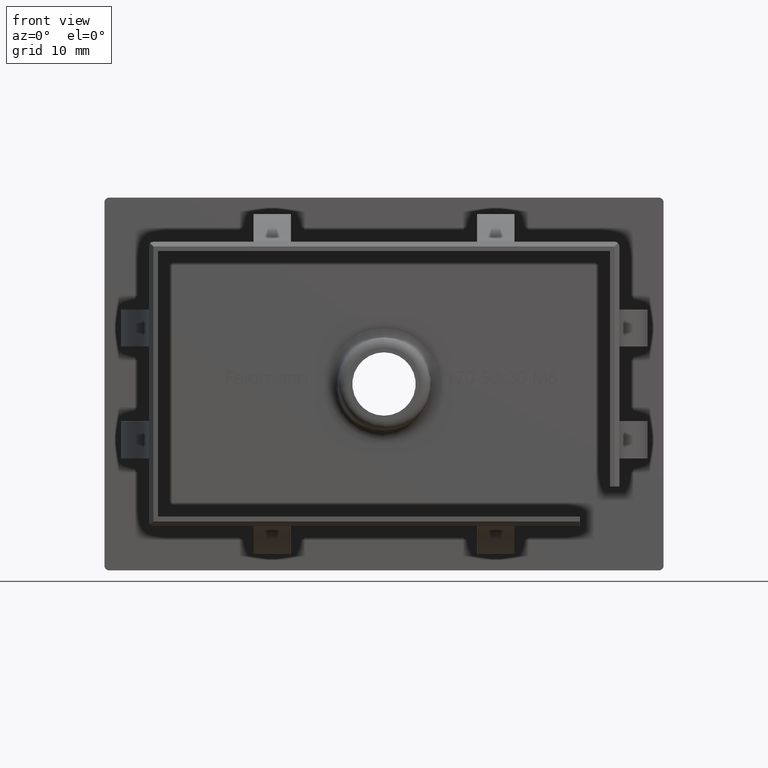
[diagram: clean part render]
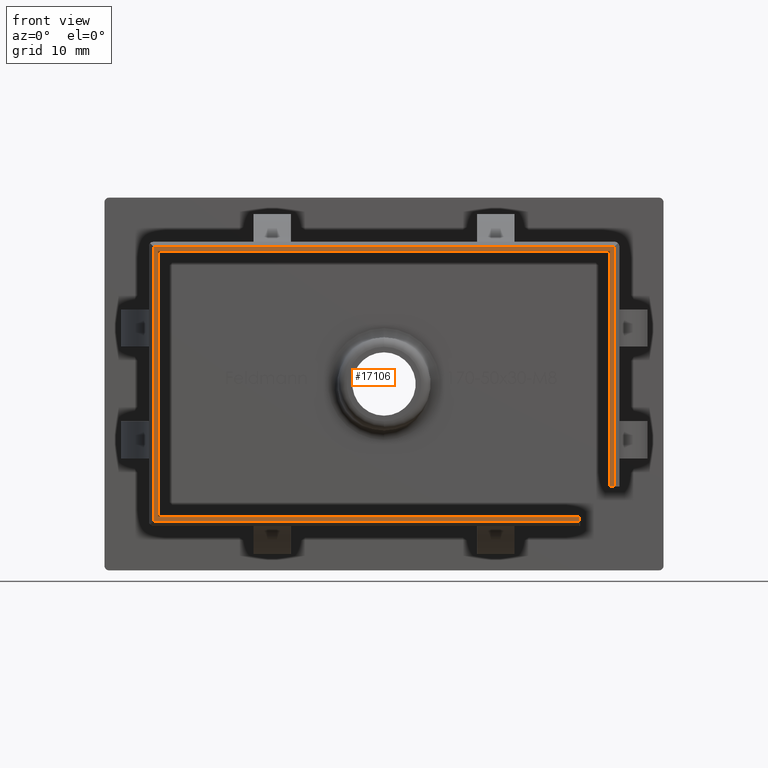
[diagram: same view with one face highlighted and labeled with its STEP entity id]
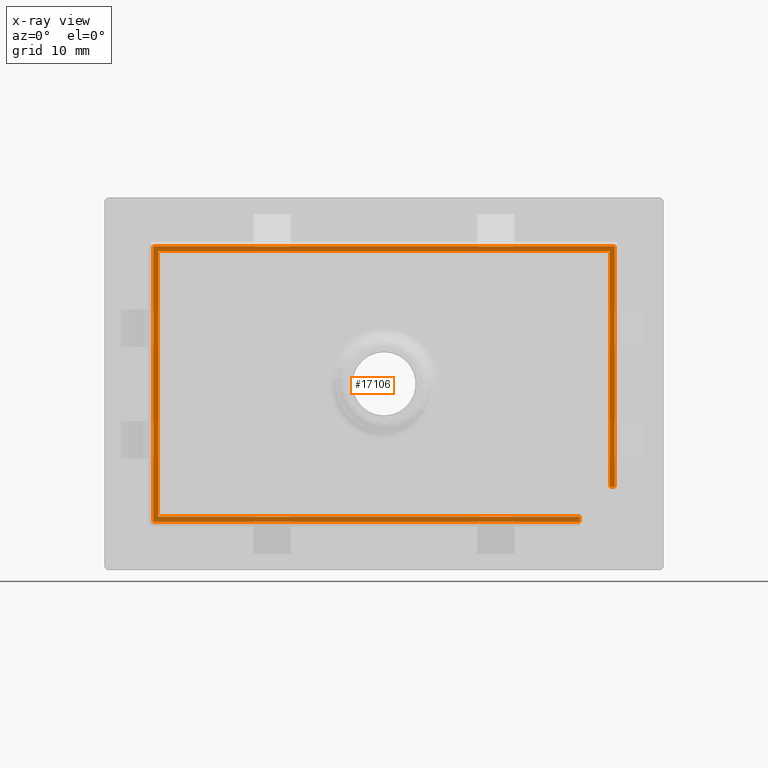
[diagram: x-ray of the same camera — body ghosted, the highlighted face saturated]
A machine part, front view. The second image highlights one B-rep face of the part: STEP entity #17106.
The next image is the same camera in x-ray: the body ghosted, the highlighted face saturated — about 0% of this face is hidden behind the body in this view.
In plain terms, the highlighted planar face has unit normal (0, -1, 0).
Its self-contained STEP definition (entity closure, byte-faithful):
#325 = CARTESIAN_POINT ( 'NONE',  ( -24.75000000000000400, -26.00000000000000000, 14.75000000000000000 ) ) ;
#460 = EDGE_CURVE ( 'NONE', #9052, #17647, #10357, .T. ) ;
#482 = CARTESIAN_POINT ( 'NONE',  ( 0.0000000000000000000, -26.00000000000000000, 0.0000000000000000000 ) ) ;
#838 = LINE ( 'NONE', #8111, #14157 ) ;
#1218 = EDGE_CURVE ( 'NONE', #17647, #8927, #15960, .T. ) ;
#1290 = CARTESIAN_POINT ( 'NONE',  ( 24.75000000000000400, -26.00000000000000000, 14.75000000000000000 ) ) ;
#1319 = ORIENTED_EDGE ( 'NONE', *, *, #3498, .T. ) ;
#1376 = VERTEX_POINT ( 'NONE', #9605 ) ;
#1434 = LINE ( 'NONE', #2034, #16274 ) ;
#1439 = VERTEX_POINT ( 'NONE', #1290 ) ;
#1988 = VERTEX_POINT ( 'NONE', #4968 ) ;
#2034 = CARTESIAN_POINT ( 'NONE',  ( 21.00000000000000400, -26.00000000000000000, -14.75000000000000500 ) ) ;
#2124 = DIRECTION ( 'NONE',  ( 1.000000000000000000, 0.0000000000000000000, -1.734723475976805500E-015 ) ) ;
#2418 = EDGE_CURVE ( 'NONE', #10188, #3463, #5071, .T. ) ;
#2685 = ORIENTED_EDGE ( 'NONE', *, *, #4511, .T. ) ;
#3005 = VECTOR ( 'NONE', #4850, 1000.000000000000000 ) ;
#3463 = VERTEX_POINT ( 'NONE', #14884 ) ;
#3498 = EDGE_CURVE ( 'NONE', #3463, #1988, #1434, .T. ) ;
#3745 = LINE ( 'NONE', #14044, #16131 ) ;
#3794 = DIRECTION ( 'NONE',  ( -0.0000000000000000000, 0.0000000000000000000, 1.000000000000000000 ) ) ;
#4342 = LINE ( 'NONE', #14942, #15375 ) ;
#4511 = EDGE_CURVE ( 'NONE', #8927, #1439, #14509, .T. ) ;
#4738 = VERTEX_POINT ( 'NONE', #16097 ) ;
#4850 = DIRECTION ( 'NONE',  ( 0.0000000000000000000, 0.0000000000000000000, 1.000000000000000000 ) ) ;
#4898 = DIRECTION ( 'NONE',  ( 0.0000000000000000000, -0.0000000000000000000, -1.000000000000000000 ) ) ;
#4929 = CARTESIAN_POINT ( 'NONE',  ( 21.00000000000000400, -26.00000000000000000, -14.24999999999999800 ) ) ;
#4968 = CARTESIAN_POINT ( 'NONE',  ( 21.00000000000000400, -26.00000000000000000, -14.75000000000000500 ) ) ;
#5071 = LINE ( 'NONE', #10082, #7564 ) ;
#5348 = CARTESIAN_POINT ( 'NONE',  ( 21.00000000000000400, -26.00000000000000000, -14.24999999999999800 ) ) ;
#5594 = ORIENTED_EDGE ( 'NONE', *, *, #1218, .T. ) ;
#6068 = EDGE_CURVE ( 'NONE', #1376, #4738, #7693, .T. ) ;
#6288 = DIRECTION ( 'NONE',  ( -1.374038396813312800E-016, 0.0000000000000000000, -1.000000000000000000 ) ) ;
#6573 = CARTESIAN_POINT ( 'NONE',  ( 24.25000000000000000, -26.00000000000000000, 14.24999999999999800 ) ) ;
#6836 = CARTESIAN_POINT ( 'NONE',  ( -24.24999999999999600, -26.00000000000000000, 14.24999999999999300 ) ) ;
#7031 = FACE_OUTER_BOUND ( 'NONE', #11308, .T. ) ;
#7553 = ORIENTED_EDGE ( 'NONE', *, *, #6068, .T. ) ;
#7564 = VECTOR ( 'NONE', #8953, 1000.000000000000000 ) ;
#7693 = LINE ( 'NONE', #6836, #11492 ) ;
#7783 = VERTEX_POINT ( 'NONE', #4929 ) ;
#8111 = CARTESIAN_POINT ( 'NONE',  ( -24.24999999999999600, -26.00000000000000000, -14.24999999999999100 ) ) ;
#8168 = ORIENTED_EDGE ( 'NONE', *, *, #15833, .T. ) ;
#8397 = VECTOR ( 'NONE', #15356, 1000.000000000000000 ) ;
#8927 = VERTEX_POINT ( 'NONE', #18014 ) ;
#8953 = DIRECTION ( 'NONE',  ( 0.0000000000000000000, 0.0000000000000000000, -1.000000000000000000 ) ) ;
#9052 = VERTEX_POINT ( 'NONE', #6573 ) ;
#9214 = DIRECTION ( 'NONE',  ( 1.000000000000000000, 0.0000000000000000000, -1.125226038471442800E-016 ) ) ;
#9605 = CARTESIAN_POINT ( 'NONE',  ( -24.24999999999999600, -26.00000000000000000, -14.24999999999999100 ) ) ;
#9671 = DIRECTION ( 'NONE',  ( -1.000000000000000000, -0.0000000000000000000, 1.533457216333089200E-016 ) ) ;
#10082 = CARTESIAN_POINT ( 'NONE',  ( -24.75000000000000400, -26.00000000000000000, -15.24999999999999300 ) ) ;
#10133 = VECTOR ( 'NONE', #6288, 1000.000000000000000 ) ;
#10171 = EDGE_CURVE ( 'NONE', #4738, #9052, #4342, .T. ) ;
#10188 = VERTEX_POINT ( 'NONE', #325 ) ;
#10357 = LINE ( 'NONE', #13772, #10133 ) ;
#10629 = PLANE ( 'NONE',  #16943 ) ;
#10733 = EDGE_CURVE ( 'NONE', #1988, #7783, #11957, .T. ) ;
#10909 = ORIENTED_EDGE ( 'NONE', *, *, #10171, .T. ) ;
#11000 = VECTOR ( 'NONE', #2124, 1000.000000000000000 ) ;
#11308 = EDGE_LOOP ( 'NONE', ( #11585, #1319, #14619, #11745, #7553, #10909, #16859, #5594, #2685, #8168 ) ) ;
#11492 = VECTOR ( 'NONE', #3794, 1000.000000000000000 ) ;
#11585 = ORIENTED_EDGE ( 'NONE', *, *, #2418, .T. ) ;
#11745 = ORIENTED_EDGE ( 'NONE', *, *, #14852, .T. ) ;
#11872 = DIRECTION ( 'NONE',  ( 0.0000000000000000000, -1.000000000000000000, 0.0000000000000000000 ) ) ;
#11957 = LINE ( 'NONE', #5348, #8397 ) ;
#13637 = CARTESIAN_POINT ( 'NONE',  ( 24.24999999999999600, -26.00000000000000000, -10.99999999999999600 ) ) ;
#13772 = CARTESIAN_POINT ( 'NONE',  ( 24.25000000000000000, -26.00000000000000000, 14.24999999999999800 ) ) ;
#14044 = CARTESIAN_POINT ( 'NONE',  ( -25.24999999999999600, -26.00000000000000000, 14.75000000000000000 ) ) ;
#14157 = VECTOR ( 'NONE', #9671, 1000.000000000000000 ) ;
#14509 = LINE ( 'NONE', #16232, #3005 ) ;
#14619 = ORIENTED_EDGE ( 'NONE', *, *, #10733, .T. ) ;
#14708 = CARTESIAN_POINT ( 'NONE',  ( 24.24999999999999600, -26.00000000000000000, -10.99999999999999600 ) ) ;
#14709 = DIRECTION ( 'NONE',  ( 1.000000000000000000, -0.0000000000000000000, 1.073024830501117900E-016 ) ) ;
#14852 = EDGE_CURVE ( 'NONE', #7783, #1376, #838, .T. ) ;
#14884 = CARTESIAN_POINT ( 'NONE',  ( -24.75000000000000400, -26.00000000000000000, -14.75000000000000200 ) ) ;
#14942 = CARTESIAN_POINT ( 'NONE',  ( 24.25000000000000000, -26.00000000000000000, 14.24999999999999800 ) ) ;
#15356 = DIRECTION ( 'NONE',  ( -0.0000000000000000000, -0.0000000000000000000, 1.000000000000000000 ) ) ;
#15375 = VECTOR ( 'NONE', #14709, 1000.000000000000000 ) ;
#15833 = EDGE_CURVE ( 'NONE', #1439, #10188, #3745, .T. ) ;
#15960 = LINE ( 'NONE', #13637, #11000 ) ;
#16097 = CARTESIAN_POINT ( 'NONE',  ( -24.24999999999999600, -26.00000000000000000, 14.24999999999999300 ) ) ;
#16131 = VECTOR ( 'NONE', #18323, 1000.000000000000000 ) ;
#16232 = CARTESIAN_POINT ( 'NONE',  ( 24.75000000000000400, -26.00000000000000000, 15.24999999999999300 ) ) ;
#16274 = VECTOR ( 'NONE', #9214, 1000.000000000000000 ) ;
#16859 = ORIENTED_EDGE ( 'NONE', *, *, #460, .T. ) ;
#16943 = AXIS2_PLACEMENT_3D ( 'NONE', #482, #11872, #4898 ) ;
#17106 = ADVANCED_FACE ( 'NONE', ( #7031 ), #10629, .T. ) ;
#17647 = VERTEX_POINT ( 'NONE', #14708 ) ;
#18014 = CARTESIAN_POINT ( 'NONE',  ( 24.75000000000000400, -26.00000000000000000, -10.99999999999999800 ) ) ;
#18323 = DIRECTION ( 'NONE',  ( -1.000000000000000000, 0.0000000000000000000, 0.0000000000000000000 ) ) ;